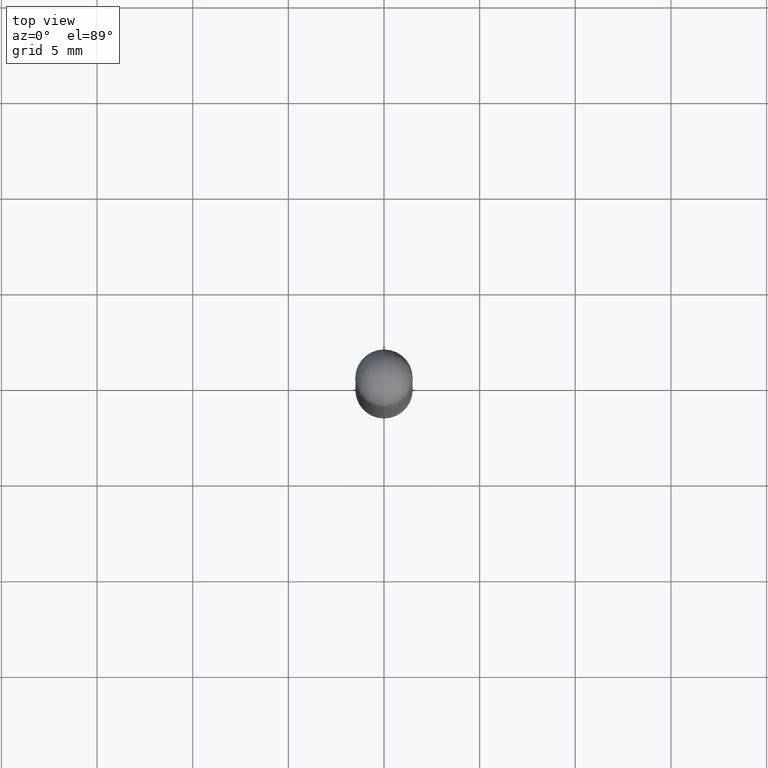
[diagram: clean part render]
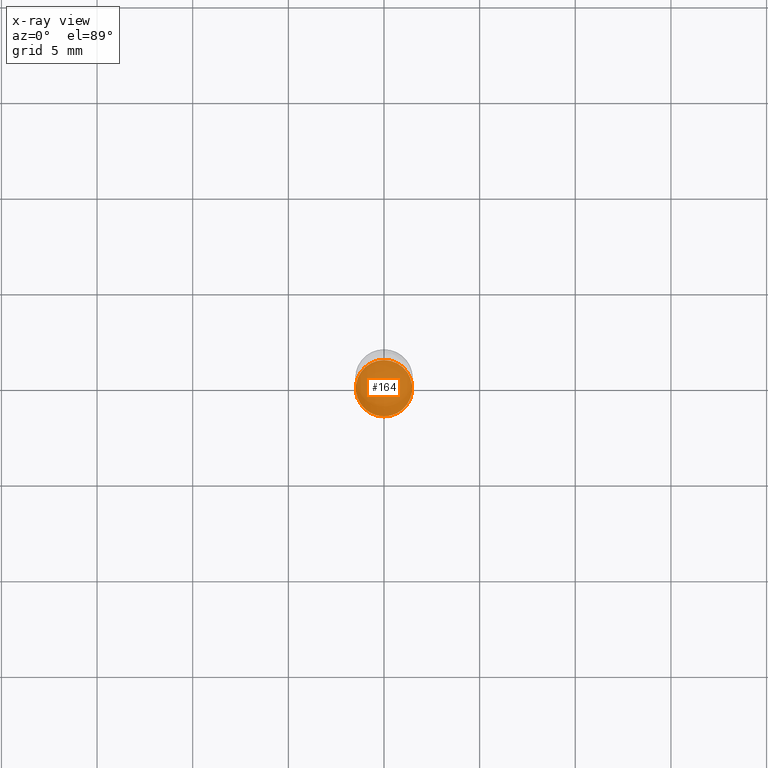
[diagram: x-ray — body ghosted, one internal face saturated and labeled with its STEP entity id]
A machine part, top view, then the same camera in x-ray: the body is ghosted and one INTERNAL B-rep face — a face not visible from any outside direction — is saturated and labeled: STEP entity #164.
In plain terms, the highlighted planar face has unit normal (-0, 0, 1).
Its self-contained STEP definition (entity closure, byte-faithful):
#47 = VERTEX_POINT ( 'NONE', #719 ) ;
#134 = AXIS2_PLACEMENT_3D ( 'NONE', #233, #287, #730 ) ;
#138 = FACE_OUTER_BOUND ( 'NONE', #798, .T. ) ;
#164 = ADVANCED_FACE ( 'NONE', ( #138 ), #386, .F. ) ;
#178 = AXIS2_PLACEMENT_3D ( 'NONE', #310, #549, #818 ) ;
#186 = EDGE_CURVE ( 'NONE', #47, #376, #560, .T. ) ;
#233 = CARTESIAN_POINT ( 'NONE',  ( 3.090468111920608031E-29, -4.385424551516256277E-15, -1.259899999999999798 ) ) ;
#262 = CARTESIAN_POINT ( 'NONE',  ( 3.090468111920608031E-29, -4.385424551516256277E-15, -1.259899999999999798 ) ) ;
#287 = DIRECTION ( 'NONE',  ( -2.452947148123349933E-29, 3.480771927546834282E-15, 1.000000000000000000 ) ) ;
#295 = DIRECTION ( 'NONE',  ( -2.452947148123349933E-29, 3.480771927546833888E-15, 1.000000000000000000 ) ) ;
#307 = ORIENTED_EDGE ( 'NONE', *, *, #186, .F. ) ;
#310 = CARTESIAN_POINT ( 'NONE',  ( 3.090468111920608031E-29, -4.385424551516256277E-15, -1.259899999999999798 ) ) ;
#376 = VERTEX_POINT ( 'NONE', #703 ) ;
#386 = PLANE ( 'NONE',  #586 ) ;
#421 = ORIENTED_EDGE ( 'NONE', *, *, #778, .F. ) ;
#456 = CIRCLE ( 'NONE', #134, 0.05804999999999999744 ) ;
#549 = DIRECTION ( 'NONE',  ( -2.452947148123349933E-29, 3.480771927546834282E-15, 1.000000000000000000 ) ) ;
#560 = CIRCLE ( 'NONE', #178, 0.05804999999999999744 ) ;
#586 = AXIS2_PLACEMENT_3D ( 'NONE', #262, #295, #787 ) ;
#703 = CARTESIAN_POINT ( 'NONE',  ( 4.160227717875699517E-16, 0.05804999999999560512, -1.259900000000000020 ) ) ;
#719 = CARTESIAN_POINT ( 'NONE',  ( -4.053609834396568584E-16, -0.05805000000000438282, -1.259899999999999576 ) ) ;
#730 = DIRECTION ( 'NONE',  ( -6.982962677686265922E-15, -1.000000000000000000, 4.706025828879006993E-15 ) ) ;
#778 = EDGE_CURVE ( 'NONE', #376, #47, #456, .T. ) ;
#787 = DIRECTION ( 'NONE',  ( -6.982962677686265922E-15, -1.000000000000000000, 3.480771927546833888E-15 ) ) ;
#798 = EDGE_LOOP ( 'NONE', ( #307, #421 ) ) ;
#818 = DIRECTION ( 'NONE',  ( -6.982962677686265922E-15, -1.000000000000000000, 4.706025828879006993E-15 ) ) ;